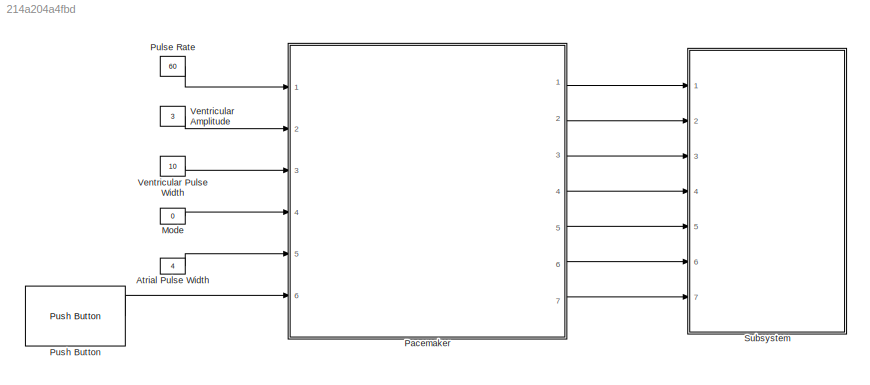
MODEL slx_214a204a4fbd
KIND model
CONFIG AbsTol = auto
CONFIG EnableMultiTasking = on
CONFIG FixedStep = 1E-3
CONFIG MaxStep = auto
CONFIG MinStep = auto
CONFIG RelTol = 1e-3
CONFIG SampleTimeConstraint = Unconstrained
CONFIG Solver = FixedStepAuto
CONFIG SolverName = FixedStepAuto
CONFIG StartTime = 0.0
CONFIG StopTime = inf
BLOCK [Constant] Atrial Pulse Width
  OutDataTypeStr = double
  Value = 4
BLOCK [Constant] Mode
  OutDataTypeStr = uint8
  Value = 0
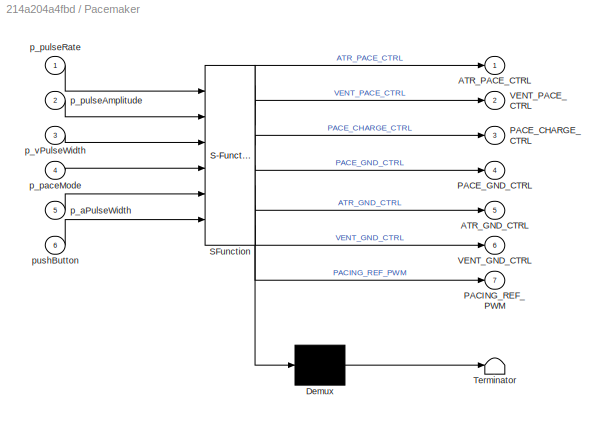
BLOCK [SubSystem] Pacemaker
  ErrorFcn = Stateflow.Translate.translate
  PermitHierarchicalResolution = ExplicitOnly
  Ports = [6, 7]
  RequestExecContextInheritance = off
  SFBlockType = Chart
  TreatAsAtomicUnit = on
BLOCK [Demux] Pacemaker/ Demux 
  Outputs = 1
  Ports = [1, 1]
BLOCK [S-Function] Pacemaker/ SFunction 
  EnableBusSupport = on
  FunctionName = sf_sfun
  PortCounts = [6 8]
  Ports = [6, 8]
  SFcnIsStateOwnerBlock = off
  SFunctionDeploymentMode = off
  Tag = Stateflow S-Function Assignment1_2017 3
BLOCK [Terminator] Pacemaker/ Terminator 
BLOCK [Outport] Pacemaker/ATR_GND_CTRL
  IconDisplay = Port number
  Port = 5
BLOCK [Outport] Pacemaker/ATR_PACE_CTRL
  IconDisplay = Port number
BLOCK [Outport] Pacemaker/PACE_CHARGE_CTRL
  IconDisplay = Port number
  Port = 3
BLOCK [Outport] Pacemaker/PACE_GND_CTRL
  IconDisplay = Port number
  Port = 4
BLOCK [Outport] Pacemaker/PACING_REF_PWM
  IconDisplay = Port number
  Port = 7
BLOCK [Outport] Pacemaker/VENT_GND_CTRL
  IconDisplay = Port number
  Port = 6
BLOCK [Outport] Pacemaker/VENT_PACE_CTRL
  IconDisplay = Port number
  Port = 2
BLOCK [Inport] Pacemaker/p_aPulseWidth
  IconDisplay = Port number
  Port = 5
BLOCK [Inport] Pacemaker/p_paceMode
  IconDisplay = Port number
  Port = 4
BLOCK [Inport] Pacemaker/p_pulseAmplitude
  IconDisplay = Port number
  Port = 2
BLOCK [Inport] Pacemaker/p_pulseRate
  IconDisplay = Port number
BLOCK [Inport] Pacemaker/p_vPulseWidth
  IconDisplay = Port number
  Port = 3
BLOCK [Inport] Pacemaker/pushButton
  IconDisplay = Port number
  Port = 6
BLOCK [Constant] Pulse Rate
  OutDataTypeStr = double
  Value = 60
BLOCK [Reference] Push Button  REF=frdmk64flib/Push Button
  Ports = [0, 1]
  SourceBlock = frdmk64flib/Push Button
  SourceProductBaseCode = EC_FRDM_K64F
  SourceProductName = Simulink Coder Support Package for NXP FRDM-K64F Board
  SourceType = freedomk64f.PushButton
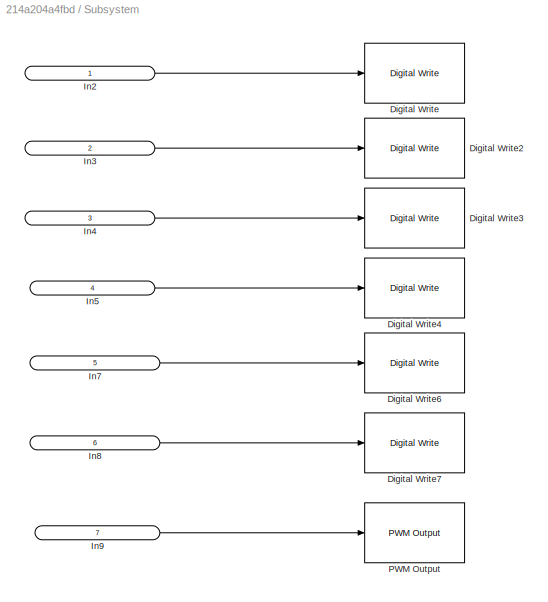
BLOCK [SubSystem] Subsystem
  Ports = [7]
  RequestExecContextInheritance = off
BLOCK [Reference] Subsystem/Digital Write  REF=frdmk64flib/Digital Write
  Ports = [1]
  SourceBlock = frdmk64flib/Digital Write
  SourceProductBaseCode = EC_FRDM_K64F
  SourceProductName = Simulink Coder Support Package for NXP FRDM-K64F Board
  SourceType = freedomk64f.DigitalWrite
BLOCK [Reference] Subsystem/Digital Write2  REF=frdmk64flib/Digital Write
  Ports = [1]
  SourceBlock = frdmk64flib/Digital Write
  SourceProductBaseCode = EC_FRDM_K64F
  SourceProductName = Simulink Coder Support Package for NXP FRDM-K64F Board
  SourceType = freedomk64f.DigitalWrite
BLOCK [Reference] Subsystem/Digital Write3  REF=frdmk64flib/Digital Write
  Ports = [1]
  SourceBlock = frdmk64flib/Digital Write
  SourceProductBaseCode = EC_FRDM_K64F
  SourceProductName = Simulink Coder Support Package for NXP FRDM-K64F Board
  SourceType = freedomk64f.DigitalWrite
BLOCK [Reference] Subsystem/Digital Write4  REF=frdmk64flib/Digital Write
  Ports = [1]
  SourceBlock = frdmk64flib/Digital Write
  SourceProductBaseCode = EC_FRDM_K64F
  SourceProductName = Simulink Coder Support Package for NXP FRDM-K64F Board
  SourceType = freedomk64f.DigitalWrite
BLOCK [Reference] Subsystem/Digital Write6  REF=frdmk64flib/Digital Write
  Ports = [1]
  SourceBlock = frdmk64flib/Digital Write
  SourceProductBaseCode = EC_FRDM_K64F
  SourceProductName = Simulink Coder Support Package for NXP FRDM-K64F Board
  SourceType = freedomk64f.DigitalWrite
BLOCK [Reference] Subsystem/Digital Write7  REF=frdmk64flib/Digital Write
  Ports = [1]
  SourceBlock = frdmk64flib/Digital Write
  SourceProductBaseCode = EC_FRDM_K64F
  SourceProductName = Simulink Coder Support Package for NXP FRDM-K64F Board
  SourceType = freedomk64f.DigitalWrite
BLOCK [Inport] Subsystem/In2
  IconDisplay = Signal name
BLOCK [Inport] Subsystem/In3
  IconDisplay = Signal name
  Port = 2
BLOCK [Inport] Subsystem/In4
  IconDisplay = Signal name
  Port = 3
BLOCK [Inport] Subsystem/In5
  IconDisplay = Signal name
  Port = 4
BLOCK [Inport] Subsystem/In7
  IconDisplay = Signal name
  Port = 5
BLOCK [Inport] Subsystem/In8
  IconDisplay = Signal name
  Port = 6
BLOCK [Inport] Subsystem/In9
  IconDisplay = Signal name
  Port = 7
BLOCK [Reference] Subsystem/PWM Output  REF=frdmk64flib/PWM Output
  Ports = [1]
  SourceBlock = frdmk64flib/PWM Output
  SourceProductBaseCode = EC_FRDM_K64F
  SourceProductName = Simulink Coder Support Package for NXP FRDM-K64F Board
  SourceType = freedomk64f.PWMOutput
BLOCK [Constant] Ventricular Amplitude
  OutDataTypeStr = double
  Value = 3
BLOCK [Constant] Ventricular Pulse Width
  OutDataTypeStr = double
  Value = 10
LINE Atrial Pulse Width:1 -> Pacemaker:5
LINE Mode:1 -> Pacemaker:4
LINE Pacemaker:1 -> Subsystem:1
LINE Pacemaker:2 -> Subsystem:2
LINE Pacemaker:3 -> Subsystem:3
LINE Pacemaker:4 -> Subsystem:4
LINE Pacemaker:5 -> Subsystem:5
LINE Pacemaker:6 -> Subsystem:6
LINE Pacemaker:7 -> Subsystem:7
LINE Pulse Rate:1 -> Pacemaker:1
LINE Push Button:1 -> Pacemaker:6
LINE Subsystem/In2:1 -> Subsystem/Digital Write:1
LINE Subsystem/In3:1 -> Subsystem/Digital Write2:1
LINE Subsystem/In4:1 -> Subsystem/Digital Write3:1
LINE Subsystem/In5:1 -> Subsystem/Digital Write4:1
LINE Subsystem/In7:1 -> Subsystem/Digital Write6:1
LINE Subsystem/In8:1 -> Subsystem/Digital Write7:1
LINE Subsystem/In9:1 -> Subsystem/PWM Output:1
LINE Ventricular Amplitude:1 -> Pacemaker:2
LINE Ventricular Pulse Width:1 -> Pacemaker:3
CHART Pacemaker states=4 transitions=7
  STATE_LABEL 'ChargeC22DischargeC21\n% Charging C22 and discharging C21\nentry:\n% Charge C22\nVENT_PACE_CTRL=0;\nPACING_REF_PWM=(p_pulseAmplitude/5.0)*100;\nPACE_CHARGE_CTRL=1;\n%Discharge C21\nPACE_GND_CTRL=1;\nVENT_GND_CTRL=1;'
  STATE_LABEL 'PaceAtrium\n%PACE ATRIUM\nentry:\nPACE_CHARGE_CTRL=0;\nPACE_GND_CTRL=1;\nATR_GND_CTRL=0;\nATR_PACE_CTRL=1;'
  STATE_LABEL 'PaceVentricle\n%PACE VENTRICLE\nentry:\nPACE_CHARGE_CTRL=0;\nPACE_GND_CTRL=1;\nVENT_GND_CTRL=0;\nVENT_PACE_CTRL=1;'
  STATE_LABEL 'NaturalBeatDetected\n%Going into this state and back\n% to charge state "resets" timer\n% for pacing'
